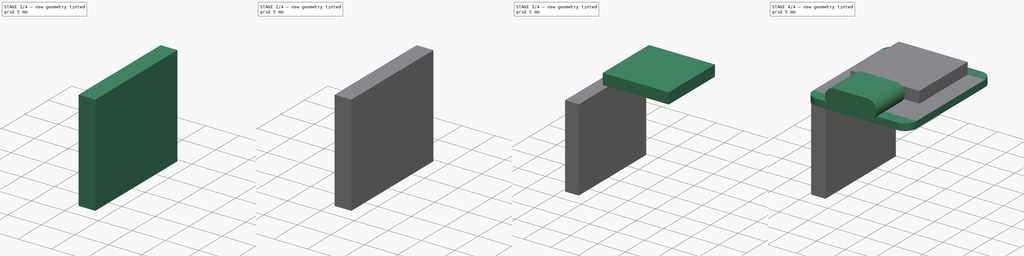
[diagram: build sequence overview — one tinted view per stage of 4, left to right]
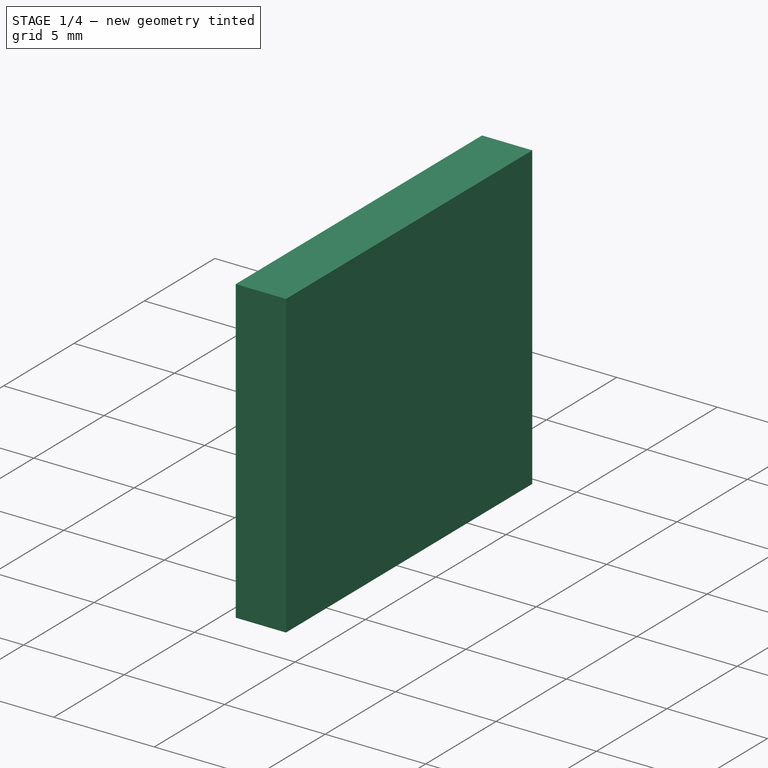
[diagram: stage 1 of 4 — iso view after this stage's code; geometry added in this stage tinted green]
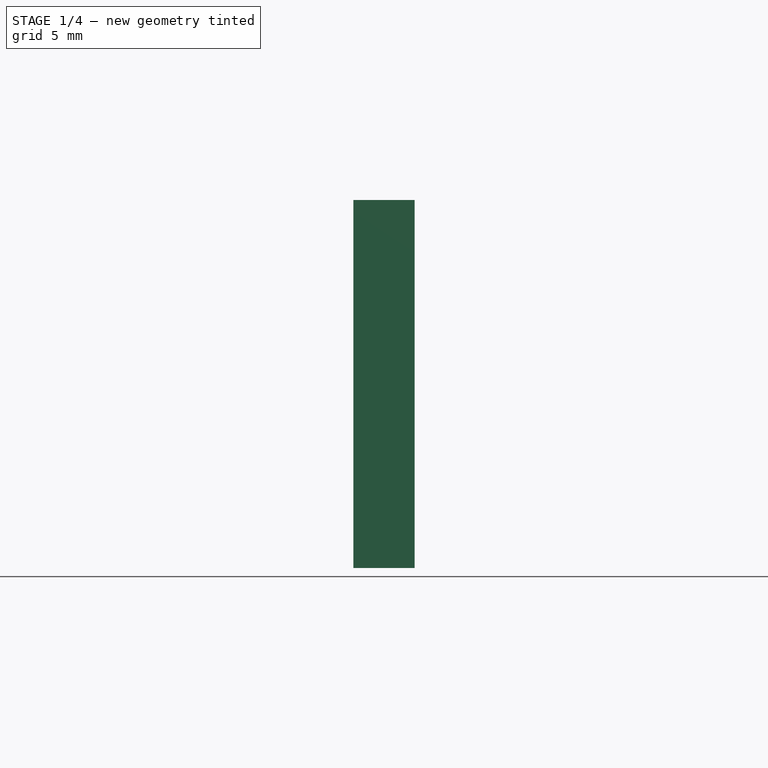
[diagram: stage 1 of 4 — front view after this stage's code; geometry added in this stage tinted green]
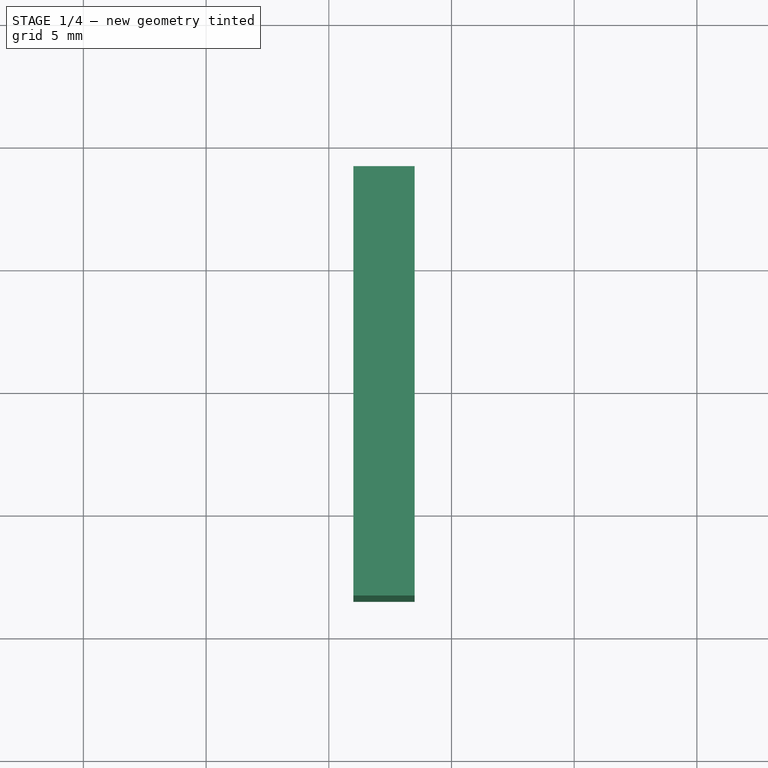
[diagram: stage 1 of 4 — top view after this stage's code; geometry added in this stage tinted green]
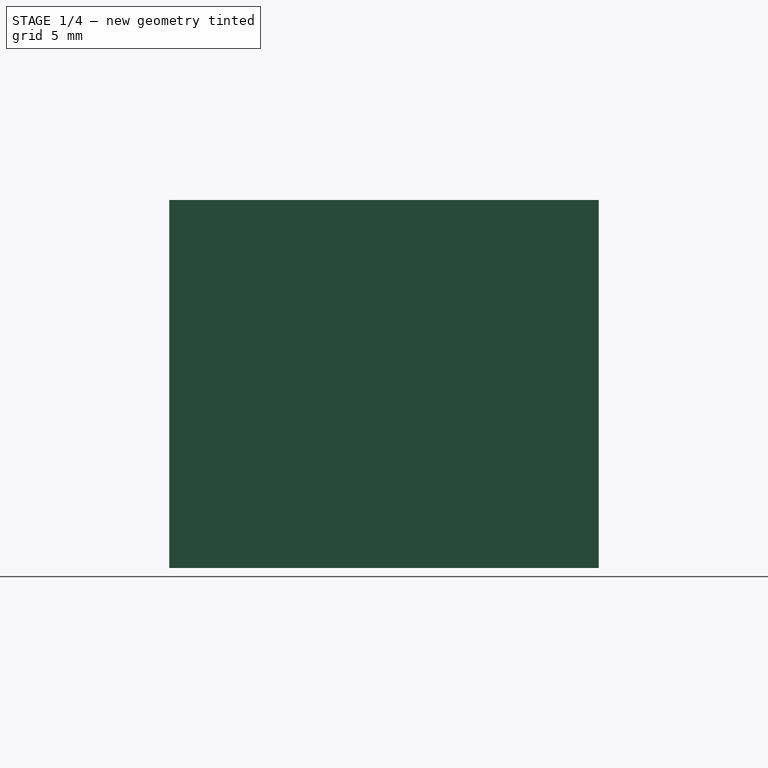
[diagram: stage 1 of 4 — right view after this stage's code; geometry added in this stage tinted green]
FCSTD DOCUMENT  (FreeCAD 0.20R29177 +426 (Git))
Label: Grove_XiaoOnly
License: All rights reserved
LicenseURL: http://en.wikipedia.org/wiki/All_rights_reserved
objects: PartDesign::Body×9, Sketcher::SketchObject×6, PartDesign::Pad×6, PartDesign::FeatureBase×3, PartDesign::Plane×2, PartDesign::ShapeBinder×1, App::Part×1
note: 33 computed .brp shape members not serialized (recipe doc carries the construction recipe); baked Part::Feature solids carry a one-line shape summary decoded from their .brp

FEATURE [PartDesign::Body] Body018  label="Pins_R"
  BaseFeature = -> Body017
  Group = -> [Clone008]
  Origin = -> Origin020
  Placement = pos=(15.5,0,0) rot=(0,0,1;0rad)
  Tip = -> Clone008
FEATURE [PartDesign::Plane] DatumPlane001
  AttachmentOffset = pos=(0,0,-1.2) rot=(0,0,1;0rad)
  Length = 60
  MapMode = 5
  Placement = pos=(0,0,-1.2) rot=(0,0,1;0rad)
  ResizeMode = 0
  Support = -> [XY_Plane021]
  Width = 60
FEATURE [Sketcher::SketchObject] Sketch018
  FullyConstrained = true
  MapMode = 5
  Placement = pos=(0,0,-1.2) rot=(0,0,1;0rad)
  Support = -> [DatumPlane001]
  sketch-geometry (4):
    g0: LineSegment StartX=-9 StartY=19 StartZ=0 EndX=-6.5 EndY=19 EndZ=0
    g1: LineSegment StartX=-6.5 StartY=19 StartZ=0 EndX=-6.5 EndY=1.5 EndZ=0
    g2: LineSegment StartX=-6.5 StartY=1.5 StartZ=0 EndX=-9 EndY=1.5 EndZ=0
    g3: LineSegment StartX=-9 StartY=1.5 StartZ=0 EndX=-9 EndY=19 EndZ=0
  constraints (12):
    c: Coincident(g0,g1)
    c: Coincident(g1,g2)
    c: Coincident(g2,g3)
    c: Coincident(g3,g0)
    c: Horizontal(g0)
    c: Horizontal(g2)
    c: Vertical(g1)
    c: Vertical(g3)
    c: Distance(g3) = 17.5
    c: Distance(g2) = 2.5
    c: DistanceX(g2,g-1) = 9
    c: DistanceY(g-1,g2) = 1.5
FEATURE [PartDesign::Pad] Pad012
  Direction = (0,0,1)
  Length = 15
  Length2 = 100
  Placement = pos=(0,0,-1.2) rot=(0,0,1;0rad)
  Profile = -> Sketch018
  ReferenceAxis = -> Sketch018 [N_Axis]
  Reversed = true
  Type = 0
FEATURE [PartDesign::Body] Body019  label="PinBlockExt_L"
  Group = -> [DatumPlane001,Sketch018,Pad012]
  Origin = -> Origin021
  Placement = pos=(0,0,-2.7) rot=(0,0,1;0rad)
  Tip = -> Pad012
FEATURE [PartDesign::FeatureBase] Clone009
  BaseFeature = -> Body019
FEATURE [PartDesign::Body] Body020  label="PinBlockExt_R"
  BaseFeature = -> Body019
  Group = -> [Clone009]
  Origin = -> Origin022
  Placement = pos=(15.5,0,-2.7) rot=(0,0,1;0rad)
  Tip = -> Clone009
FEATURE [App::Part] Part  label="Seeeduino_Xiao"
  Group = -> [Body,Body013,Body014,Body015,Body016,Body017,Body018,Body019,Body020]
  Origin = -> Origin
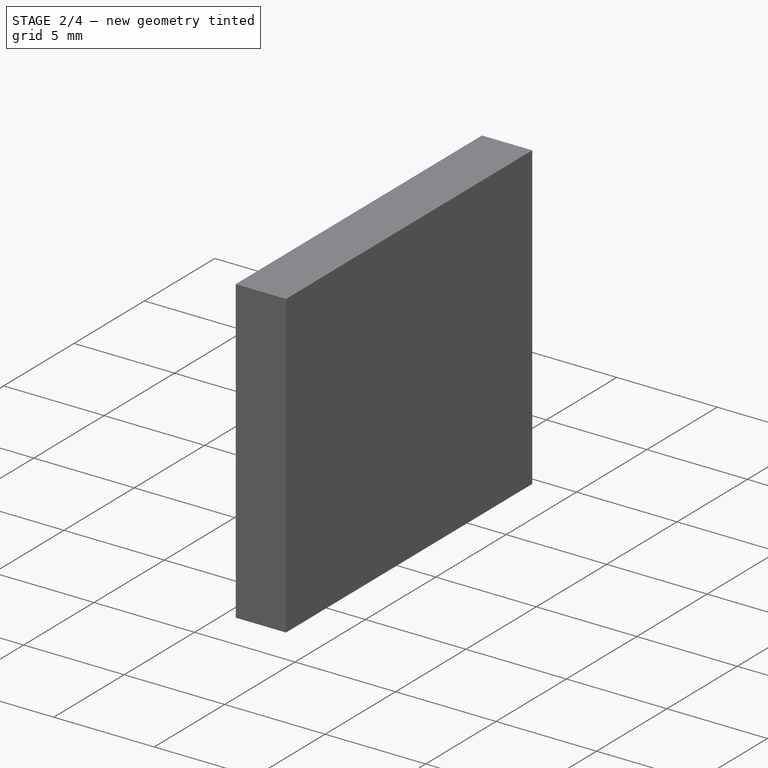
[diagram: stage 2 of 4 — iso view after this stage's code; geometry added in this stage tinted green]
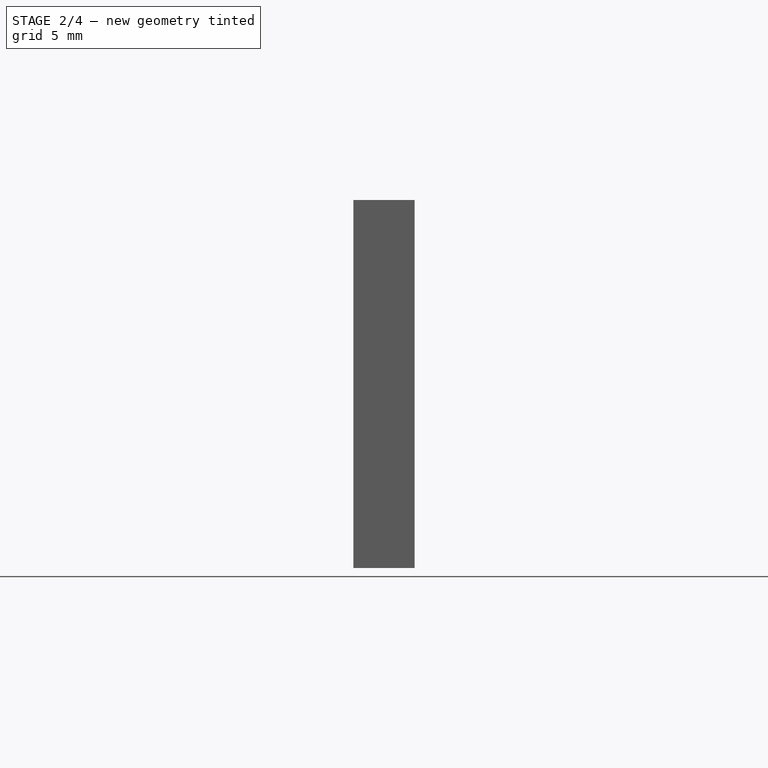
[diagram: stage 2 of 4 — front view after this stage's code; geometry added in this stage tinted green]
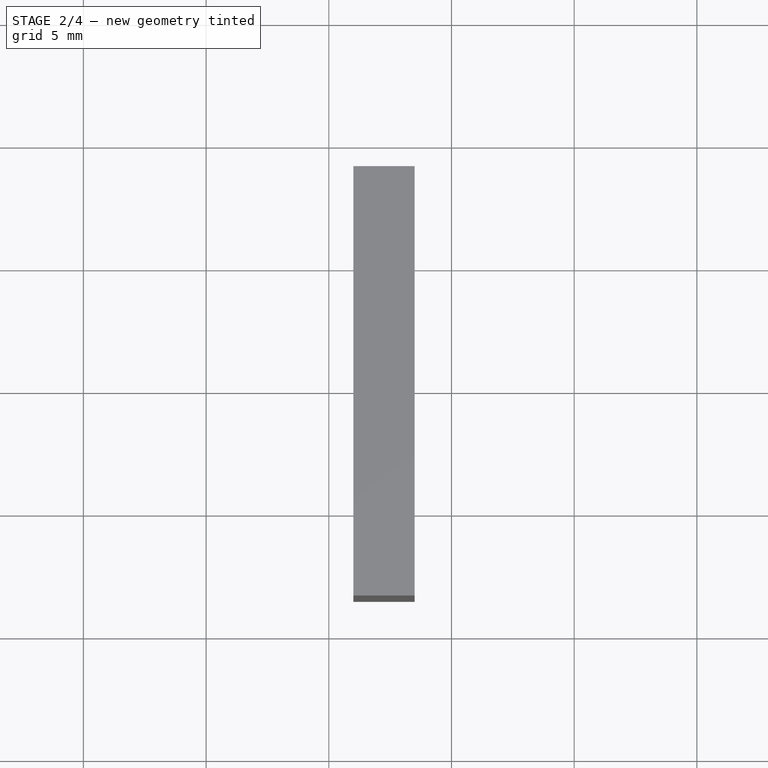
[diagram: stage 2 of 4 — top view after this stage's code; geometry added in this stage tinted green]
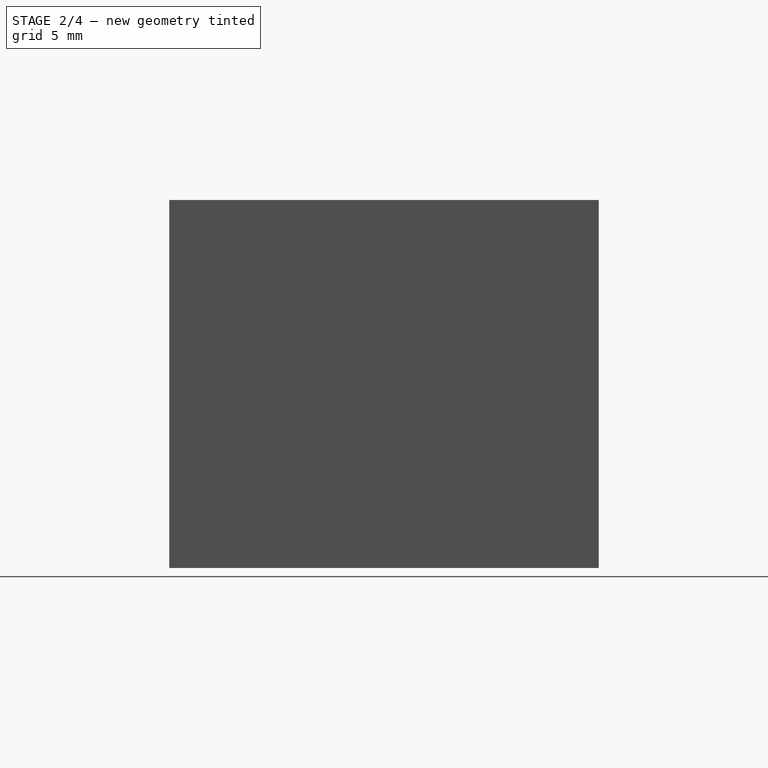
[diagram: stage 2 of 4 — right view after this stage's code; geometry added in this stage tinted green]
FEATURE [PartDesign::Body] Body016  label="PinBlock_R"
  BaseFeature = -> Body015
  Group = -> [Clone007]
  Origin = -> Origin018
  Placement = pos=(15.5,0,0) rot=(0,0,1;0rad)
  Tip = -> Clone007
FEATURE [PartDesign::ShapeBinder] CopyPad010
  Placement = pos=(0,0,-2.5) rot=(0,0,1;0rad)
  TraceSupport = false
FEATURE [Sketcher::SketchObject] Sketch017
  FullyConstrained = true
  MapMode = 5
  Placement = pos=(0,0,-3.7) rot=(1,0,0;3.14159rad)
  Support = -> [CopyPad010]
  sketch-geometry (4):
    g0: ArcOfCircle CenterX=-7.75 CenterY=-2.75 CenterZ=0 NormalX=0 NormalY=0 NormalZ=1 AngleXU=0 Radius=0.325 StartAngle=-6.22e-14 EndAngle=3.14159
    g1: ArcOfCircle CenterX=-7.75 CenterY=-17.25 CenterZ=0 NormalX=0 NormalY=0 NormalZ=1 AngleXU=0 Radius=0.325 StartAngle=3.14159 EndAngle=6.28319
    g2: LineSegment StartX=-8.075 StartY=-2.75 StartZ=0 EndX=-8.075 EndY=-17.25 EndZ=0
    g3: LineSegment StartX=-7.425 StartY=-2.75 StartZ=0 EndX=-7.425 EndY=-17.25 EndZ=0
  constraints (10):
    c: Tangent(g0,g3) = 1.5708
    c: Tangent(g0,g2) = -1.5708
    c: Tangent(g2,g1) = -1.5708
    c: Tangent(g3,g1) = 1.5708
    c: Vertical(g2)
    c: Equal(g0,g1)
    c: DistanceX(g1,g1) = 0.65
    c: Distance(g2) = 14.5
    c: DistanceX(g1,g-1) = 7.75
    c: DistanceY(g0,g-1) = 2.75
FEATURE [PartDesign::Pad] Pad011
  Direction = (1,1,1)
  Length = 6
  Length2 = 100
  Placement = pos=(0,0,-2.5) rot=(0,0,1;0rad)
  Profile = -> Sketch017
  Type = 0
FEATURE [PartDesign::Body] Body017  label="Pins_L"
  Group = -> [CopyPad010,Sketch017,Pad011]
  Origin = -> Origin019
  Tip = -> Pad011
FEATURE [PartDesign::FeatureBase] Clone008
  BaseFeature = -> Body017
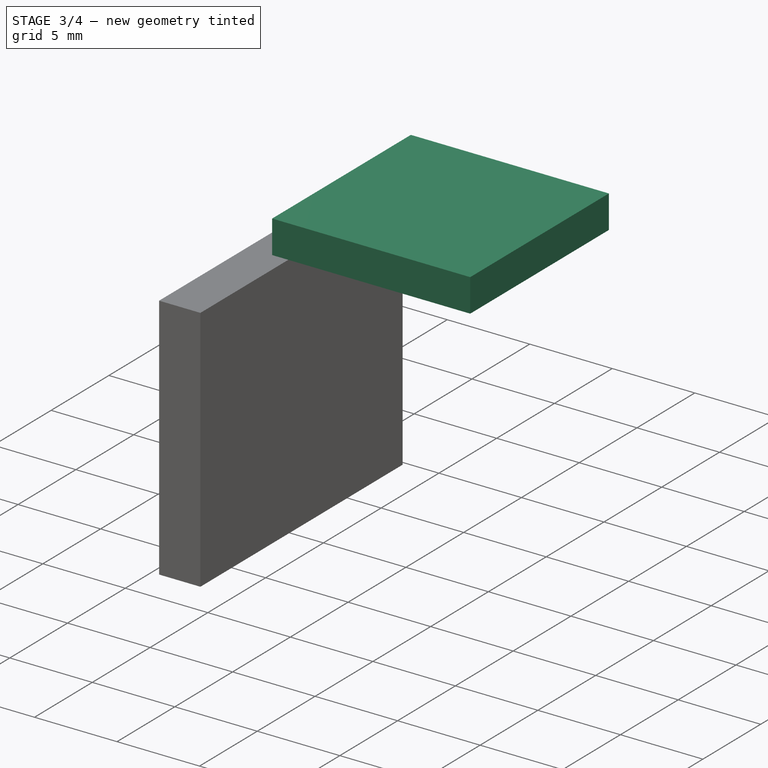
[diagram: stage 3 of 4 — iso view after this stage's code; geometry added in this stage tinted green]
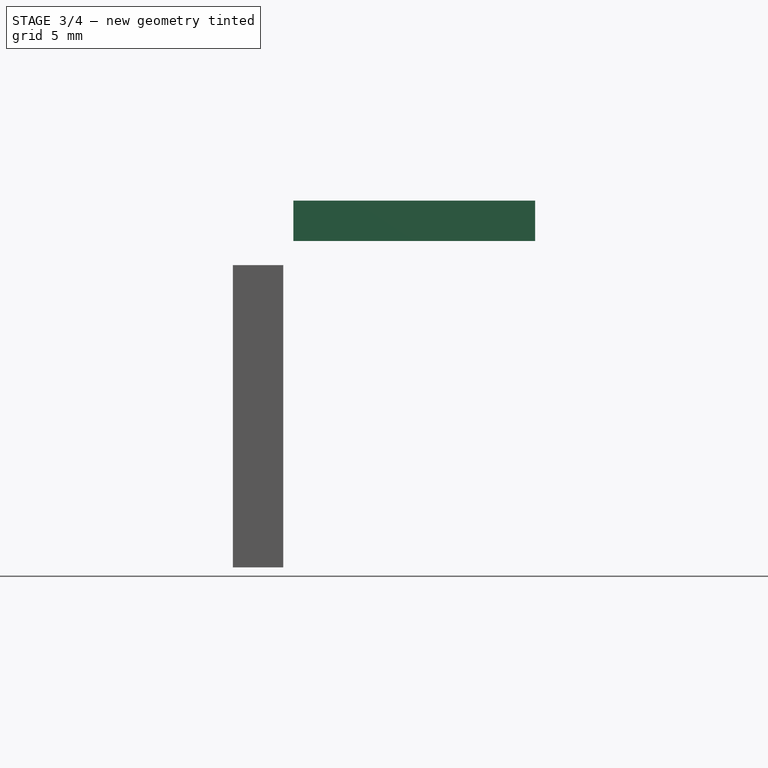
[diagram: stage 3 of 4 — front view after this stage's code; geometry added in this stage tinted green]
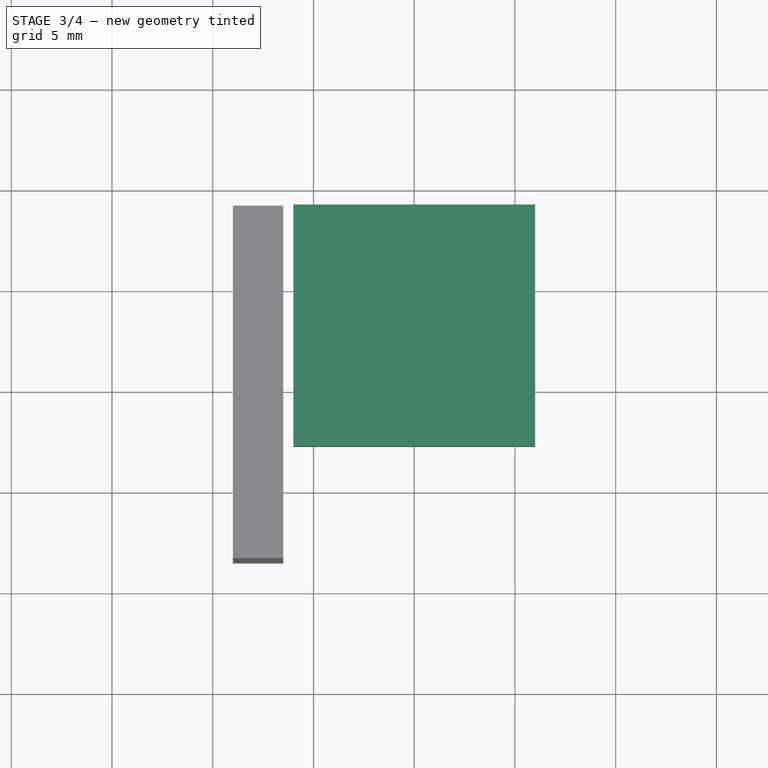
[diagram: stage 3 of 4 — top view after this stage's code; geometry added in this stage tinted green]
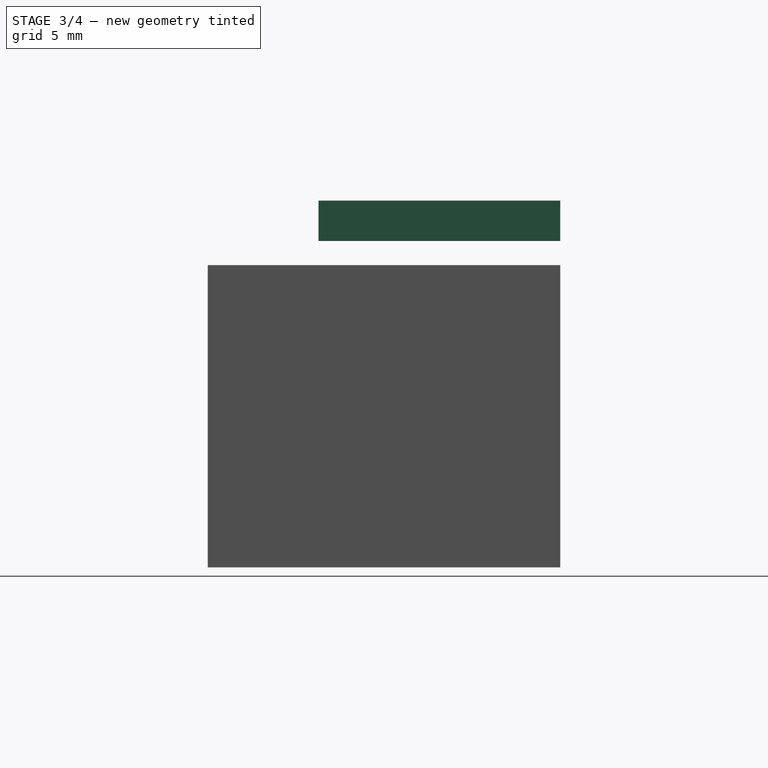
[diagram: stage 3 of 4 — right view after this stage's code; geometry added in this stage tinted green]
FEATURE [PartDesign::Body] Body013  label="USBCPort"
  Group = -> [Sketch014,Pad008]
  Origin = -> Origin015
  Tip = -> Pad008
FEATURE [Sketcher::SketchObject] Sketch015
  FullyConstrained = true
  MapMode = 5
  Support = -> [XY_Plane016]
  sketch-geometry (5):
    g0: LineSegment StartX=-6 StartY=19 StartZ=0 EndX=6 EndY=19 EndZ=0
    g1: LineSegment StartX=6 StartY=19 StartZ=0 EndX=6 EndY=7 EndZ=0
    g2: LineSegment StartX=6 StartY=7 StartZ=0 EndX=-6 EndY=7 EndZ=0
    g3: LineSegment StartX=-6 StartY=7 StartZ=0 EndX=-6 EndY=19 EndZ=0
    g4: LineSegment StartX=0 StartY=0 StartZ=0 EndX=0 EndY=7 EndZ=0
  constraints (14):
    c: Coincident(g0,g1)
    c: Coincident(g1,g2)
    c: Coincident(g2,g3)
    c: Coincident(g3,g0)
    c: Horizontal(g0)
    c: Horizontal(g2)
    c: Vertical(g1)
    c: Vertical(g3)
    c: Coincident(g4,g-1)
    c: PointOnObject(g4,g-2)
    c: Symmetric(g2,g1,g4)
    c: Equal(g0,g1)
    c: Distance(g0) = 12
    c: Distance(g4) = 7
FEATURE [PartDesign::Pad] Pad009
  Direction = (1,1,1)
  Length = 2
  Length2 = 100
  Profile = -> Sketch015
  Type = 0
FEATURE [PartDesign::Body] Body014  label="CortexProcessor"
  Group = -> [Sketch015,Pad009]
  Origin = -> Origin016
  Tip = -> Pad009
FEATURE [PartDesign::Plane] DatumPlane
  AttachmentOffset = pos=(0,0,-1.2) rot=(0,0,1;0rad)
  Length = 60
  MapMode = 5
  Placement = pos=(0,0,-1.2) rot=(0,0,1;0rad)
  ResizeMode = 0
  Support = -> [XY_Plane017]
  Width = 60
FEATURE [Sketcher::SketchObject] Sketch016
  FullyConstrained = true
  MapMode = 5
  Placement = pos=(0,0,-1.2) rot=(0,0,1;0rad)
  Support = -> [DatumPlane]
  sketch-geometry (4):
    g0: LineSegment StartX=-9 StartY=19 StartZ=0 EndX=-6.5 EndY=19 EndZ=0
    g1: LineSegment StartX=-6.5 StartY=19 StartZ=0 EndX=-6.5 EndY=1.5 EndZ=0
    g2: LineSegment StartX=-6.5 StartY=1.5 StartZ=0 EndX=-9 EndY=1.5 EndZ=0
    g3: LineSegment StartX=-9 StartY=1.5 StartZ=0 EndX=-9 EndY=19 EndZ=0
  constraints (12):
    c: Coincident(g0,g1)
    c: Coincident(g1,g2)
    c: Coincident(g2,g3)
    c: Coincident(g3,g0)
    c: Horizontal(g0)
    c: Horizontal(g2)
    c: Vertical(g1)
    c: Vertical(g3)
    c: Distance(g3) = 17.5
    c: Distance(g2) = 2.5
    c: DistanceX(g2,g-1) = 9
    c: DistanceY(g-1,g2) = 1.5
FEATURE [PartDesign::Pad] Pad010
  Direction = (1,1,1)
  Length = 2.5
  Length2 = 100
  Placement = pos=(0,0,-1.2) rot=(0,0,1;0rad)
  Profile = -> Sketch016
  Reversed = true
  Type = 0
FEATURE [PartDesign::Body] Body015  label="PinBlock_L"
  Group = -> [DatumPlane,Sketch016,Pad010]
  Origin = -> Origin017
  Tip = -> Pad010
FEATURE [PartDesign::FeatureBase] Clone007
  BaseFeature = -> Body015
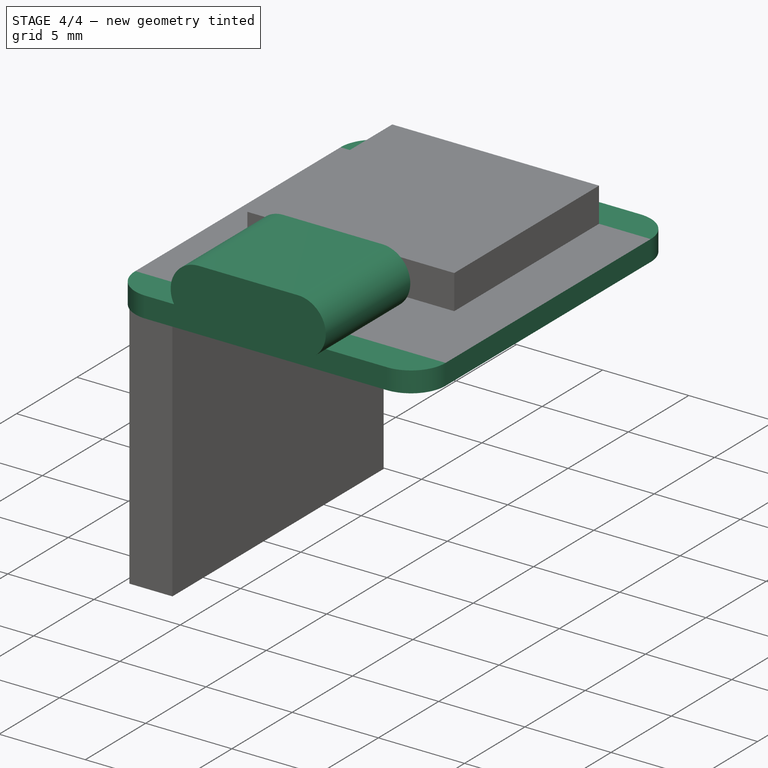
[diagram: stage 4 of 4 — iso view after this stage's code; geometry added in this stage tinted green]
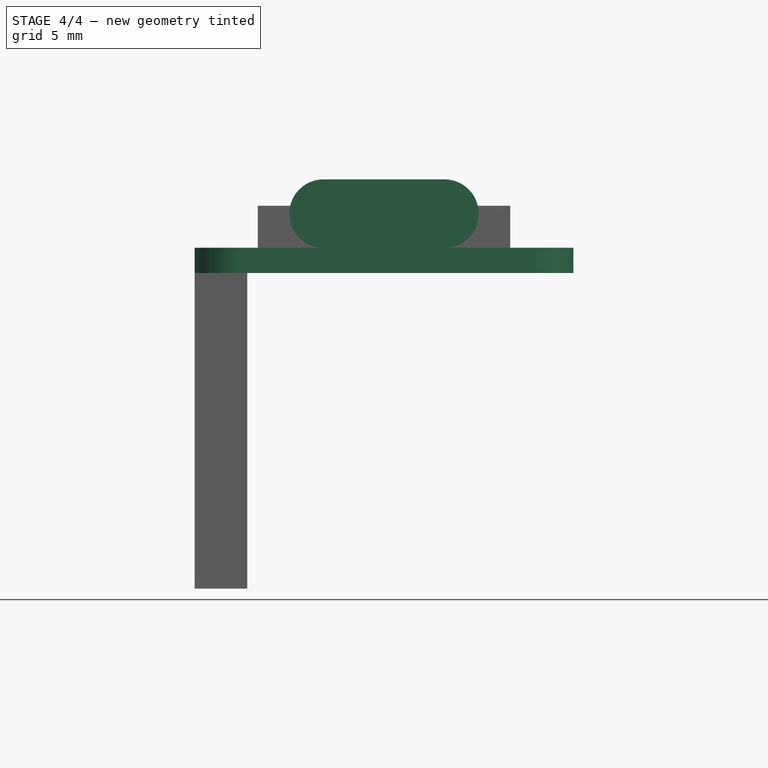
[diagram: stage 4 of 4 — front view after this stage's code; geometry added in this stage tinted green]
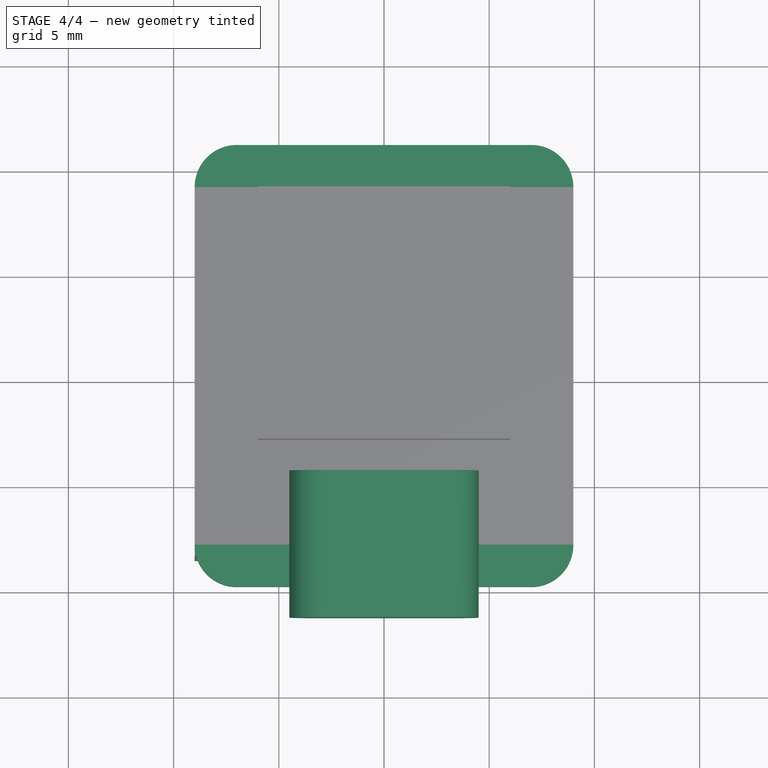
[diagram: stage 4 of 4 — top view after this stage's code; geometry added in this stage tinted green]
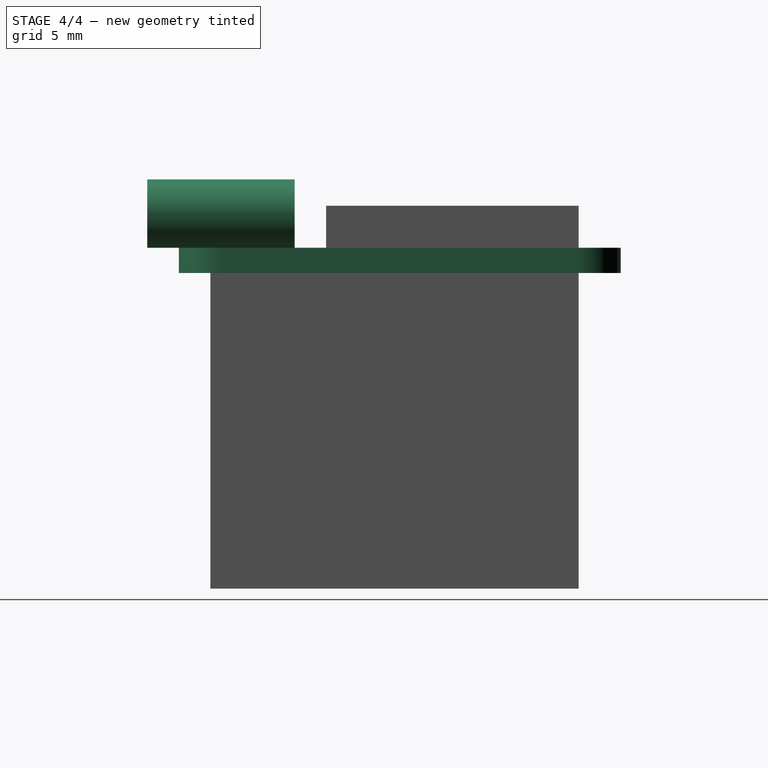
[diagram: stage 4 of 4 — right view after this stage's code; geometry added in this stage tinted green]
FEATURE [Sketcher::SketchObject] Sketch013
  FullyConstrained = true
  MapMode = 5
  Support = -> [XY_Plane001]
  sketch-geometry (12):
    g0: LineSegment StartX=-7 StartY=0 StartZ=0 EndX=7 EndY=0 EndZ=0
    g1: LineSegment StartX=9 StartY=2 StartZ=0 EndX=9 EndY=19 EndZ=0
    g2: LineSegment StartX=7 StartY=21 StartZ=0 EndX=-7 EndY=21 EndZ=0
    g3: LineSegment StartX=-9 StartY=19 StartZ=0 EndX=-9 EndY=2 EndZ=0
    g4: ArcOfCircle CenterX=-7 CenterY=19 CenterZ=0 NormalX=0 NormalY=0 NormalZ=1 AngleXU=0 Radius=2 StartAngle=1.5708 EndAngle=3.14159
    g5: ArcOfCircle CenterX=7 CenterY=19 CenterZ=0 NormalX=0 NormalY=0 NormalZ=1 AngleXU=0 Radius=2 StartAngle=-9e-16 EndAngle=1.5708
    g6: ArcOfCircle CenterX=7 CenterY=2 CenterZ=0 NormalX=0 NormalY=0 NormalZ=1 AngleXU=0 Radius=2 StartAngle=4.71239 EndAngle=6.28319
    g7: ArcOfCircle CenterX=-7 CenterY=2 CenterZ=0 NormalX=0 NormalY=0 NormalZ=1 AngleXU=0 Radius=2 StartAngle=3.14159 EndAngle=4.71239
    g8: LineSegment StartX=-7 StartY=19 StartZ=0 EndX=7 EndY=19 EndZ=0
    g9: LineSegment StartX=7 StartY=19 StartZ=0 EndX=7 EndY=2 EndZ=0
    g10: LineSegment StartX=7 StartY=2 StartZ=0 EndX=-7 EndY=2 EndZ=0
    g11: LineSegment StartX=-7 StartY=2 StartZ=0 EndX=-7 EndY=19 EndZ=0
  constraints (27):
    c: Horizontal(g0)
    c: Horizontal(g2)
    c: Vertical(g1)
    c: Vertical(g3)
    c: Tangent(g2,g4) = -1.5708
    c: Tangent(g3,g4) = -1.5708
    c: Tangent(g2,g5) = -1.5708
    c: Tangent(g1,g5) = -1.5708
    c: Tangent(g1,g6) = -1.5708
    c: Tangent(g0,g6) = -1.5708
    c: Tangent(g0,g7) = -1.5708
    c: Tangent(g3,g7) = -1.5708
    c: Coincident(g8,g4)
    c: Coincident(g8,g5)
    c: Horizontal(g8)
    c: Coincident(g9,g5)
    c: Coincident(g9,g6)
    c: Coincident(g10,g6)
    c: Coincident(g10,g7)
    c: Coincident(g11,g7)
    c: Coincident(g11,g4)
    c: Vertical(g11)
    c: Vertical(g9)
    c: Radius(g6) = 2
    c: DistanceX(g3,g1) = 18
    c: DistanceY(g0,g2) = 21
    c: Symmetric(g0,g0,g-1)
FEATURE [PartDesign::Pad] Pad007
  Direction = (1,1,1)
  Length = 1.2
  Length2 = 100
  Profile = -> Sketch013
  Reversed = true
  Type = 0
FEATURE [PartDesign::Body] Body  label="MainBoard"
  Group = -> [Sketch013,Pad007]
  Origin = -> Origin001
  Tip = -> Pad007
FEATURE [Sketcher::SketchObject] Sketch014
  FullyConstrained = true
  MapMode = 5
  Placement = pos=(0,0,0) rot=(1,0,0;1.5708rad)
  Support = -> [XZ_Plane015]
  sketch-geometry (6):
    g0: ArcOfCircle CenterX=-2.875 CenterY=1.625 CenterZ=0 NormalX=0 NormalY=0 NormalZ=1 AngleXU=0 Radius=1.625 StartAngle=1.5708 EndAngle=4.71239
    g1: ArcOfCircle CenterX=2.875 CenterY=1.625 CenterZ=0 NormalX=0 NormalY=0 NormalZ=1 AngleXU=0 Radius=1.625 StartAngle=4.71239 EndAngle=7.85398
    g2: LineSegment StartX=-2.875 StartY=0 StartZ=0 EndX=2.875 EndY=0 EndZ=0
    g3: LineSegment StartX=-2.875 StartY=3.25 StartZ=0 EndX=2.875 EndY=3.25 EndZ=0
    g4: LineSegment StartX=4.5 StartY=1.625 StartZ=0 EndX=4.5 EndY=0 EndZ=0
    g5: LineSegment StartX=-4.5 StartY=1.625 StartZ=0 EndX=-4.5 EndY=0 EndZ=0
  constraints (17):
    c: Tangent(g0,g3) = 1.5708
    c: Tangent(g0,g2) = -1.5708
    c: Tangent(g2,g1) = -1.5708
    c: Tangent(g3,g1) = 1.5708
    c: Horizontal(g2)
    c: Equal(g0,g1)
    c: Symmetric(g0,g1,g-1)
    c: DistanceY(g1,g1) = 3.25
    c: PointOnObject(g4,g1)
    c: PointOnObject(g4,g-1)
    c: PointOnObject(g5,g0)
    c: PointOnObject(g5,g-1)
    c: Tangent(g5,g0)
    c: Tangent(g4,g1)
    c: Vertical(g5)
    c: Vertical(g4)
    c: DistanceX(g5,g4) = 9
FEATURE [PartDesign::Pad] Pad008
  Direction = (1,1,1)
  Length = 1.5
  Length2 = 5.5
  Placement = pos=(0,0,0) rot=(1,0,0;1.5708rad)
  Profile = -> Sketch014
  Type = 4
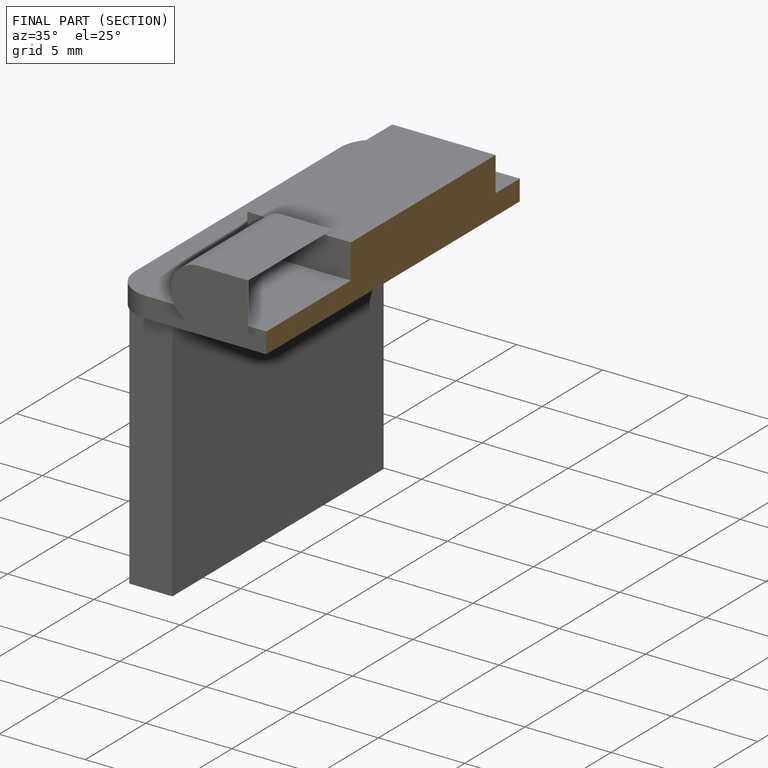
[diagram: finished part — half-section view (interior)]
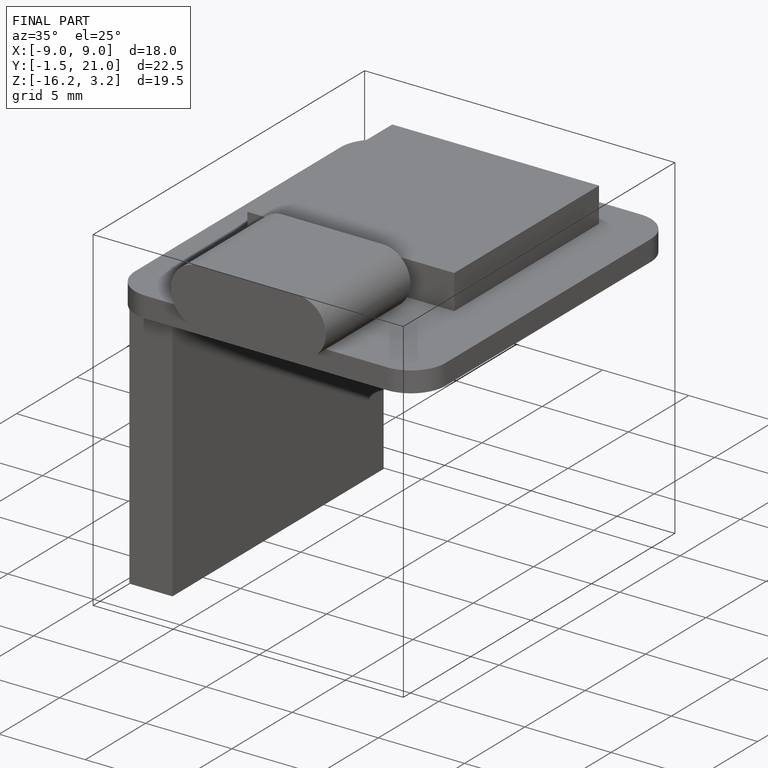
[diagram: finished part — iso view with bounding-box wireframe]
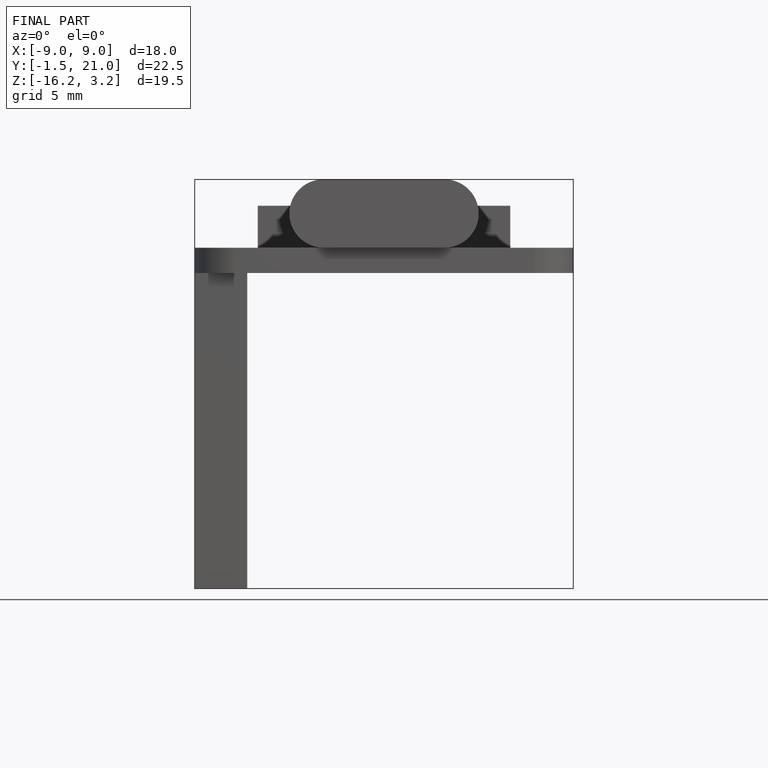
[diagram: finished part — front view with bounding-box wireframe]
